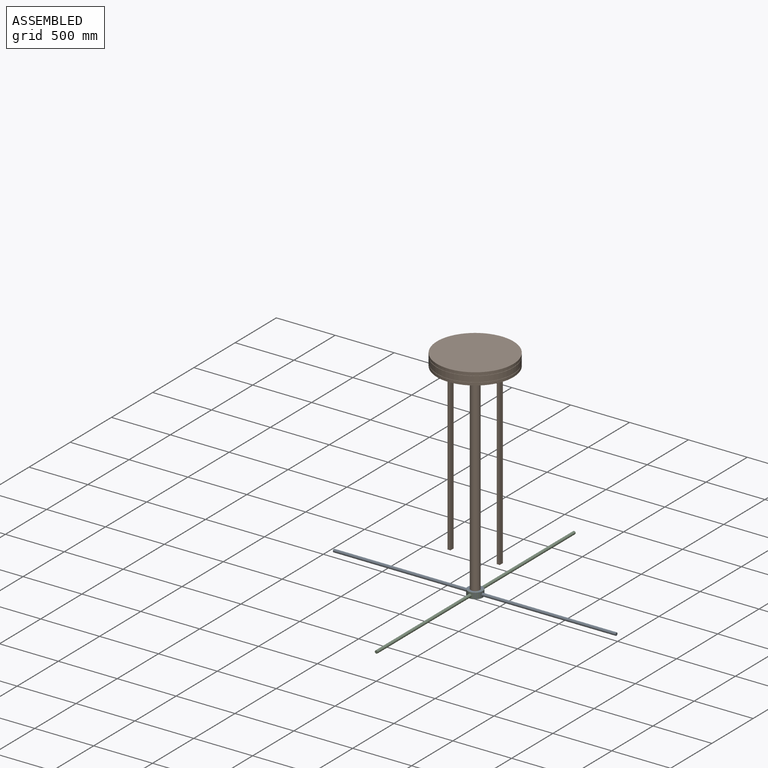
[diagram: assembled view]
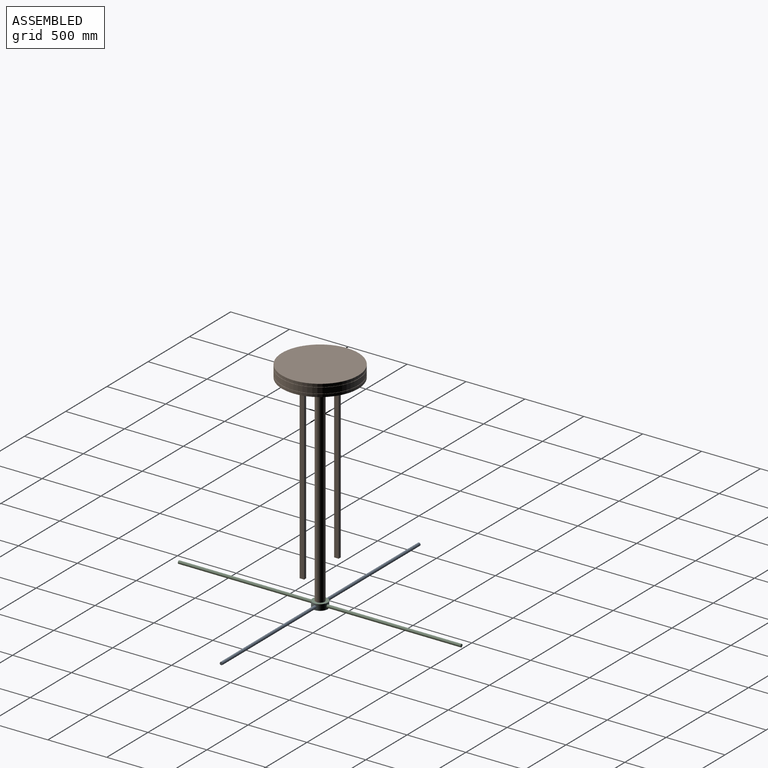
[diagram: assembled view, second angle]
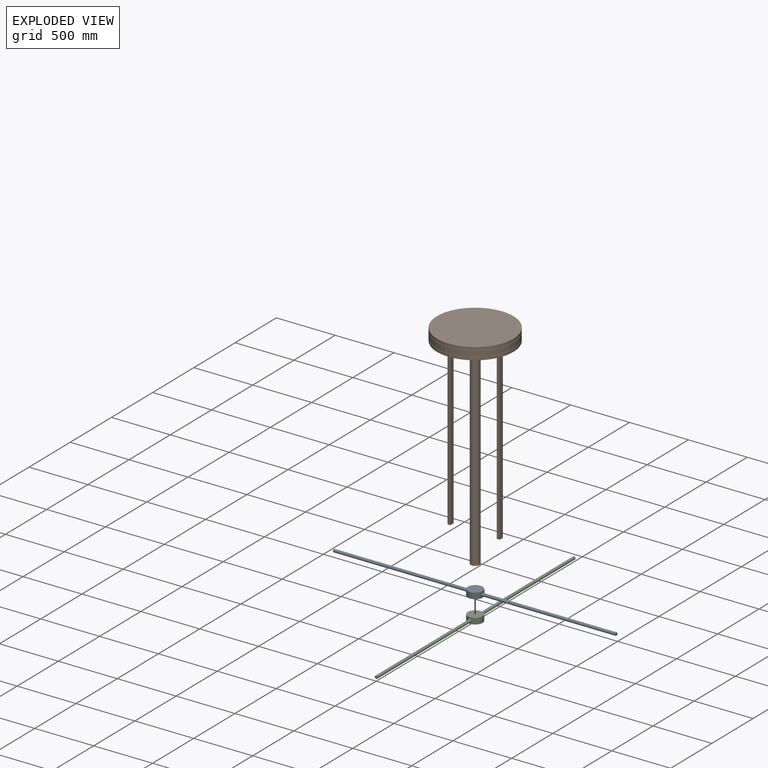
[diagram: exploded view]
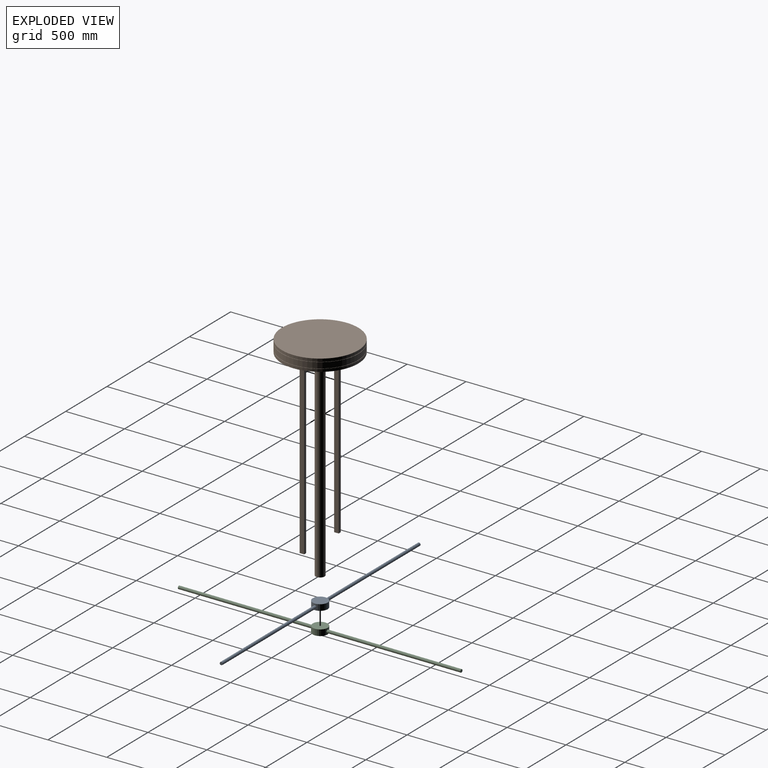
[diagram: exploded view, second angle]
ASSEMBLY  parts=3 mates=2
PART A: 7 faces, bbox 2400x127x50.8 mm
  f0: cylinder r=63.5mm len=127mm, axis (0,0,1), area 19254.8mm2, adj f1,f2,f4,f5
  f1: plane 127x127mm, normal (0,0,-1), area 12667.7mm2, adj f0
  f2: plane 127x127mm, normal (0,0,1), area 12667.7mm2, adj f0
  f3: plane 25.4x25.4mm, normal (1,0,0), area 506.7mm2, adj f4
  f4: cylinder r=12.7mm len=1137.78mm, axis (1,0,0), area 90739.8mm2, adj f0,f3
  f5: cylinder r=12.7mm len=1137.78mm, axis (1,0,0), area 90739.7mm2, adj f0,f6
  f6: plane 25.4x25.4mm, normal (-1,0,0), area 506.7mm2, adj f5
PART B: 25 faces, bbox 648.8x648.8x1813.5 mm
  f0: cylinder r=324.42mm len=648.84mm, axis (0,0,-1), area 48539.4mm2, adj f1,f6
  f1: plane 648.84x648.84mm, normal (0,0,-1), area 142883.7mm2, adj f0,f2
  f2: cylinder r=244.47mm len=488.95mm, axis (0,0,-1), area 58524.7mm2, adj f1,f3
  f3: plane 488.95x488.95mm, normal (0,0,-1), area 181270.9mm2, adj f2,f13,f15,f16,f17,f18,f20,f21
  f4: plane 648.84x648.84mm, normal (0,0,-1), area 6440.3mm2, adj f5,f7
  f5: cylinder r=321.25mm len=642.49mm, axis (0,0,1), area 6408.6mm2, adj f4,f6
  f6: plane 648.84x648.84mm, normal (0,0,1), area 6440.3mm2, adj f0,f5
  f7: cylinder r=324.42mm len=648.84mm, axis (0,0,-1), area 97078.8mm2, adj f4,f10
  f8: plane 648.84x648.84mm, normal (0,0,-1), area 6440.3mm2, adj f9,f12
  f9: cylinder r=321.25mm len=642.49mm, axis (0,0,1), area 6408.6mm2, adj f8,f10
  f10: plane 648.84x648.84mm, normal (0,0,1), area 6440.3mm2, adj f7,f9
  f11: plane 648.84x648.84mm, normal (0,0,1), area 330650.5mm2, adj f12
  f12: cylinder r=324.42mm len=648.84mm, axis (0,0,-1), area 48539.4mm2, adj f8,f11
  f13: cylinder r=38.1mm len=1750mm, axis (0,0,1), area 418931.4mm2, adj f3,f14
  f14: plane 76.2x76.2mm, normal (0,0,-1), area 4560.4mm2, adj f13
  f15: plane 1500x25.4mm, normal (0,-1,0), area 38100mm2, adj f3,f16,f18,f19
  f16: plane 1500x38.1mm, normal (-1,0,0), area 57150mm2, adj f3,f15,f17,f19
  f17: plane 1500x25.4mm, normal (0,1,0), area 38100mm2, adj f3,f16,f18,f19
  f18: plane 1500x38.1mm, normal (1,0,0), area 57150mm2, adj f3,f15,f17,f19
  f19: plane 38.1x25.4mm, normal (0,0,-1), area 967.7mm2, adj f15,f16,f17,f18
  f20: plane 1500x38.1mm, normal (1,0,0), area 57150mm2, adj f3,f21,f23,f24
  f21: plane 1500x25.4mm, normal (0,-1,0), area 38100mm2, adj f3,f20,f22,f24
  f22: plane 1500x38.1mm, normal (-1,0,0), area 57150mm2, adj f3,f21,f23,f24
  f23: plane 1500x25.4mm, normal (0,1,0), area 38100mm2, adj f3,f20,f22,f24
  f24: plane 38.1x25.4mm, normal (0,0,-1), area 967.7mm2, adj f20,f21,f22,f23
PART C: 7 faces, bbox 127x2400x50.8 mm
  f0: cylinder r=63.5mm len=127mm, axis (0,0,1), area 19254.8mm2, adj f1,f2,f4,f5
  f1: plane 127x127mm, normal (0,0,-1), area 12667.7mm2, adj f0
  f2: plane 127x127mm, normal (0,0,1), area 12667.7mm2, adj f0
  f3: plane 25.4x25.4mm, normal (0,1,0), area 506.7mm2, adj f4
  f4: cylinder r=12.7mm len=1137.78mm, axis (0,1,0), area 90739.8mm2, adj f0,f3
  f5: cylinder r=12.7mm len=1137.78mm, axis (0,1,0), area 90739.7mm2, adj f0,f6
  f6: plane 25.4x25.4mm, normal (0,-1,0), area 506.7mm2, adj f5
PLACE A t=(64.77,-392.47,301.5)mm
PLACE B t=(64.77,-392.47,301.5)mm
PLACE C t=(64.77,-392.47,301.5)mm
MATE fastened A.f0 <-> B.f13  axis (0,0,1) through (64.77,-392.47,-1410.4)mm
MATE fastened C.f0 <-> A.f0  axis (0,0,-1) through (64.77,-392.47,-1461.2)mm
